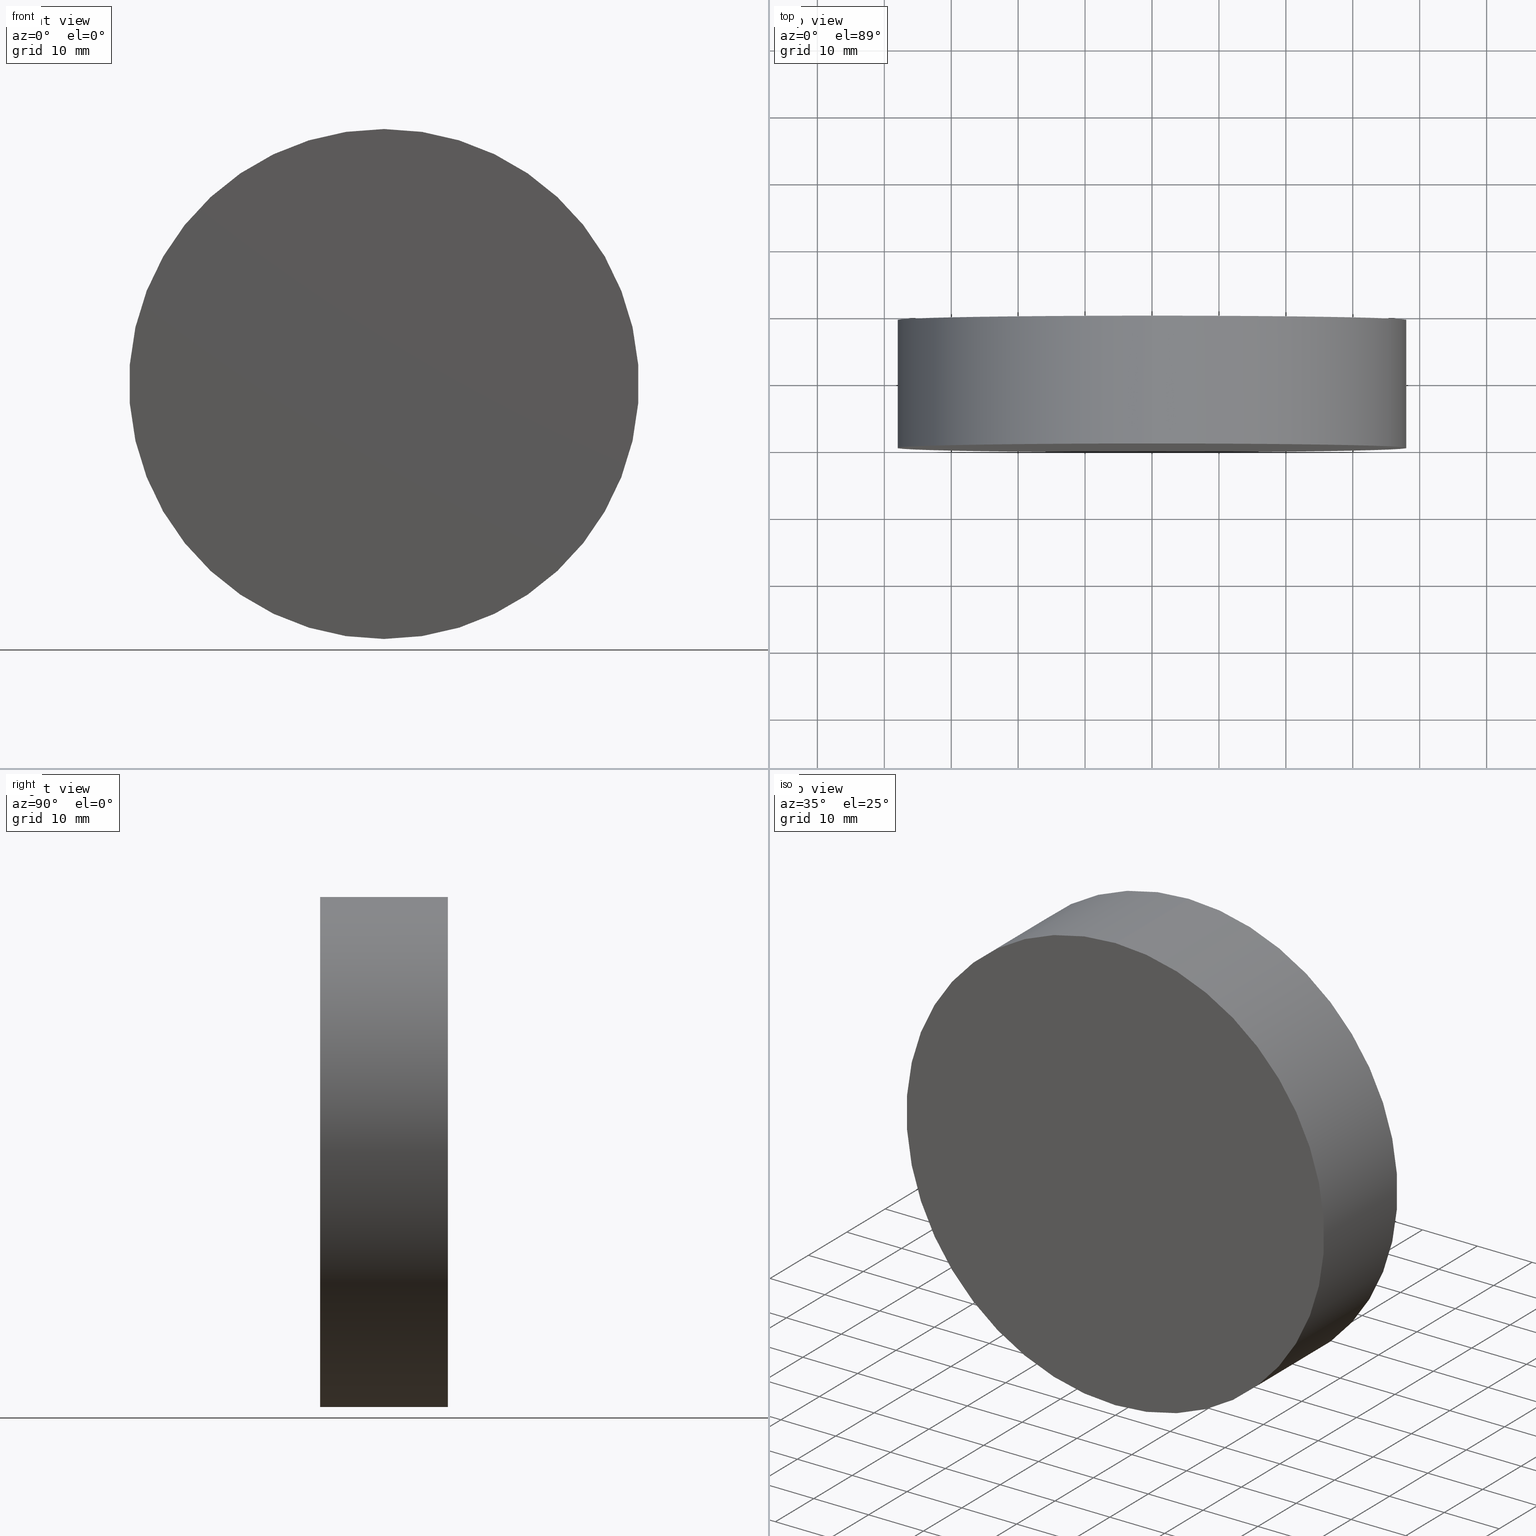
[diagram: canonical four-view strip — front | top / right | iso, engineering-drawing reading convention]
A machine part, canonical four-view strip (front | top / right | iso — engineering-drawing reading convention). The complete STEP part file that produces these views, byte-faithful:
ISO-10303-21;
HEADER;
FILE_DESCRIPTION (( 'STEP AP214' ),
    '1' );
FILE_NAME ('192502.STEP',
    '2019-07-19T05:07:47',
    ( 'user' ),
    ( '΢���й�' ),
    'SwSTEP 2.0',
    'SolidWorks 2016',
    '' );
FILE_SCHEMA (( 'AUTOMOTIVE_DESIGN' ));
ENDSEC;

DATA;
#1 = ORIENTED_EDGE ( 'NONE', *, *, #111, .F. ) ;
#2 = PRODUCT_DEFINITION ( 'δ֪', '', #10, #37 ) ;
#3 = PRESENTATION_STYLE_ASSIGNMENT (( #42 ) ) ;
#4 = APPLICATION_CONTEXT ( 'automotive_design' ) ;
#5 = DIRECTION ( 'NONE',  ( -0.0000000000000000000, -1.000000000000000000, -0.0000000000000000000 ) ) ;
#6 = DIRECTION ( 'NONE',  ( 0.0000000000000000000, 1.000000000000000000, 0.0000000000000000000 ) ) ;
#7 = DIRECTION ( 'NONE',  ( 0.0000000000000000000, 0.0000000000000000000, 1.000000000000000000 ) ) ;
#8 = FILL_AREA_STYLE ('',( #100 ) ) ;
#9 = ORIENTED_EDGE ( 'NONE', *, *, #81, .F. ) ;
#10 = PRODUCT_DEFINITION_FORMATION_WITH_SPECIFIED_SOURCE ( '�κ�', '', #45, .NOT_KNOWN. ) ;
#11 = EDGE_LOOP ( 'NONE', ( #1, #64 ) ) ;
#12 = VERTEX_POINT ( 'NONE', #31 ) ;
#13 = CIRCLE ( 'NONE', #140, 38.10000000000000100 ) ;
#14 = PRODUCT_RELATED_PRODUCT_CATEGORY ( 'part', '', ( #45 ) ) ;
#15 = CARTESIAN_POINT ( 'NONE',  ( 0.0000000000000000000, 0.0000000000000000000, 0.0000000000000000000 ) ) ;
#16 = AXIS2_PLACEMENT_3D ( 'NONE', #62, #51, #63 ) ;
#17 = SURFACE_STYLE_USAGE ( .BOTH. , #18 ) ;
#18 = SURFACE_SIDE_STYLE ('',( #50 ) ) ;
#19 =( NAMED_UNIT ( * ) PLANE_ANGLE_UNIT ( ) SI_UNIT ( $, .RADIAN. ) );
#20 =( NAMED_UNIT ( * ) SI_UNIT ( $, .STERADIAN. ) SOLID_ANGLE_UNIT ( ) );
#21 =( NAMED_UNIT ( * ) SI_UNIT ( $, .STERADIAN. ) SOLID_ANGLE_UNIT ( ) );
#22 = DIRECTION ( 'NONE',  ( 1.000000000000000000, 0.0000000000000000000, 0.0000000000000000000 ) ) ;
#23 = STYLED_ITEM ( 'NONE', ( #112 ), #122 ) ;
#24 = ORIENTED_EDGE ( 'NONE', *, *, #34, .T. ) ;
#25 = EDGE_CURVE ( 'NONE', #138, #96, #35, .T. ) ;
#26 = DIRECTION ( 'NONE',  ( 0.0000000000000000000, -0.0000000000000000000, 1.000000000000000000 ) ) ;
#27 = ORIENTED_EDGE ( 'NONE', *, *, #81, .T. ) ;
#28 = APPLICATION_CONTEXT ( 'automotive_design' ) ;
#29 = VECTOR ( 'NONE', #126, 1000.000000000000000 ) ;
#30 = CARTESIAN_POINT ( 'NONE',  ( 0.0000000000000000000, 0.0000000000000000000, 0.0000000000000000000 ) ) ;
#31 = CARTESIAN_POINT ( 'NONE',  ( 0.0000000000000000000, 0.0000000000000000000, -38.10000000000000100 ) ) ;
#32 = PRESENTATION_LAYER_ASSIGNMENT (  '', '', ( #23 ) ) ;
#33 = SURFACE_STYLE_FILL_AREA ( #127 ) ;
#34 = EDGE_CURVE ( 'NONE', #96, #12, #46, .T. ) ;
#35 = LINE ( 'NONE', #59, #99 ) ;
#36 = ADVANCED_FACE ( 'NONE', ( #72 ), #137, .F. ) ;
#37 = PRODUCT_DEFINITION_CONTEXT ( 'detailed design', #4, 'design' ) ;
#38 = CARTESIAN_POINT ( 'NONE',  ( 0.0000000000000000000, 19.10000000000000100, 0.0000000000000000000 ) ) ;
#39 = MECHANICAL_DESIGN_GEOMETRIC_PRESENTATION_REPRESENTATION (  '', ( #23 ), #47 ) ;
#40 =( LENGTH_UNIT ( ) NAMED_UNIT ( * ) SI_UNIT ( .MILLI., .METRE. ) );
#41 = AXIS2_PLACEMENT_3D ( 'NONE', #120, #44, #136 ) ;
#42 = SURFACE_STYLE_USAGE ( .BOTH. , #128 ) ;
#43 = CARTESIAN_POINT ( 'NONE',  ( 0.0000000000000000000, 19.10000000000000100, -38.10000000000000100 ) ) ;
#44 = DIRECTION ( 'NONE',  ( -0.0000000000000000000, -1.000000000000000000, -0.0000000000000000000 ) ) ;
#45 = PRODUCT ( '192502', '192502', '', ( #83 ) ) ;
#46 = CIRCLE ( 'NONE', #49, 38.10000000000000100 ) ;
#47 =( GEOMETRIC_REPRESENTATION_CONTEXT ( 3 ) GLOBAL_UNCERTAINTY_ASSIGNED_CONTEXT ( ( #97 ) ) GLOBAL_UNIT_ASSIGNED_CONTEXT ( ( #139, #108, #20 ) ) REPRESENTATION_CONTEXT ( 'NONE', 'WORKASPACE' ) );
#48 = EDGE_LOOP ( 'NONE', ( #70, #131, #24, #87 ) ) ;
#49 = AXIS2_PLACEMENT_3D ( 'NONE', #30, #76, #110 ) ;
#50 = SURFACE_STYLE_FILL_AREA ( #8 ) ;
#51 = DIRECTION ( 'NONE',  ( -0.0000000000000000000, -1.000000000000000000, -0.0000000000000000000 ) ) ;
#52 = CARTESIAN_POINT ( 'NONE',  ( 4.665904304751416100E-015, 0.0000000000000000000, 38.10000000000000100 ) ) ;
#53 = DIRECTION ( 'NONE',  ( 0.0000000000000000000, 1.000000000000000000, 0.0000000000000000000 ) ) ;
#54 = ORIENTED_EDGE ( 'NONE', *, *, #111, .T. ) ;
#55 = AXIS2_PLACEMENT_3D ( 'NONE', #78, #101, #91 ) ;
#56 = EDGE_LOOP ( 'NONE', ( #114, #9, #109, #54 ) ) ;
#57 = LINE ( 'NONE', #79, #29 ) ;
#58 =( LENGTH_UNIT ( ) NAMED_UNIT ( * ) SI_UNIT ( .MILLI., .METRE. ) );
#59 = CARTESIAN_POINT ( 'NONE',  ( 4.665904304751416100E-015, 19.10000000000000100, 38.10000000000000100 ) ) ;
#60 =( GEOMETRIC_REPRESENTATION_CONTEXT ( 3 ) GLOBAL_UNCERTAINTY_ASSIGNED_CONTEXT ( ( #67 ) ) GLOBAL_UNIT_ASSIGNED_CONTEXT ( ( #58, #135, #75 ) ) REPRESENTATION_CONTEXT ( 'NONE', 'WORKASPACE' ) );
#61 = DIRECTION ( 'NONE',  ( 0.0000000000000000000, 0.0000000000000000000, 1.000000000000000000 ) ) ;
#62 = CARTESIAN_POINT ( 'NONE',  ( 0.0000000000000000000, 19.10000000000000100, 0.0000000000000000000 ) ) ;
#63 = DIRECTION ( 'NONE',  ( 0.0000000000000000000, 0.0000000000000000000, -1.000000000000000000 ) ) ;
#64 = ORIENTED_EDGE ( 'NONE', *, *, #34, .F. ) ;
#65 = PLANE ( 'NONE',  #68 ) ;
#66 = APPLICATION_PROTOCOL_DEFINITION ( 'draft international standard', 'automotive_design', 1998, #28 ) ;
#67 = UNCERTAINTY_MEASURE_WITH_UNIT (LENGTH_MEASURE( 1.000000000000000100E-005 ), #58, 'distance_accuracy_value', 'NONE');
#68 = AXIS2_PLACEMENT_3D ( 'NONE', #38, #98, #26 ) ;
#69 = APPLICATION_PROTOCOL_DEFINITION ( 'draft international standard', 'automotive_design', 1998, #4 ) ;
#70 = ORIENTED_EDGE ( 'NONE', *, *, #71, .F. ) ;
#71 = EDGE_CURVE ( 'NONE', #138, #115, #130, .T. ) ;
#72 = FACE_OUTER_BOUND ( 'NONE', #11, .T. ) ;
#73 = CARTESIAN_POINT ( 'NONE',  ( 0.0000000000000000000, 19.10000000000000100, 0.0000000000000000000 ) ) ;
#74 = DIRECTION ( 'NONE',  ( 0.0000000000000000000, 0.0000000000000000000, 1.000000000000000000 ) ) ;
#75 =( NAMED_UNIT ( * ) SI_UNIT ( $, .STERADIAN. ) SOLID_ANGLE_UNIT ( ) );
#76 = DIRECTION ( 'NONE',  ( 0.0000000000000000000, 1.000000000000000000, 0.0000000000000000000 ) ) ;
#77 = CLOSED_SHELL ( 'NONE', ( #84, #95, #134, #36 ) ) ;
#78 = CARTESIAN_POINT ( 'NONE',  ( 0.0000000000000000000, 0.0000000000000000000, 0.0000000000000000000 ) ) ;
#79 = CARTESIAN_POINT ( 'NONE',  ( 0.0000000000000000000, 19.10000000000000100, -38.10000000000000100 ) ) ;
#80 = CIRCLE ( 'NONE', #124, 38.10000000000000100 ) ;
#81 = EDGE_CURVE ( 'NONE', #115, #138, #13, .T. ) ;
#82 = CYLINDRICAL_SURFACE ( 'NONE', #16, 38.10000000000000100 ) ;
#83 = PRODUCT_CONTEXT ( 'NONE', #28, 'mechanical' ) ;
#84 = ADVANCED_FACE ( 'NONE', ( #125 ), #132, .T. ) ;
#85 = DIRECTION ( 'NONE',  ( 0.0000000000000000000, 0.0000000000000000000, 1.000000000000000000 ) ) ;
#86 = STYLED_ITEM ( 'NONE', ( #3 ), #133 ) ;
#87 = ORIENTED_EDGE ( 'NONE', *, *, #129, .F. ) ;
#88 = CARTESIAN_POINT ( 'NONE',  ( 0.0000000000000000000, 19.10000000000000100, 0.0000000000000000000 ) ) ;
#89 = CARTESIAN_POINT ( 'NONE',  ( 0.0000000000000000000, 0.0000000000000000000, 0.0000000000000000000 ) ) ;
#90 = AXIS2_PLACEMENT_3D ( 'NONE', #88, #53, #85 ) ;
#91 = DIRECTION ( 'NONE',  ( 0.0000000000000000000, -0.0000000000000000000, 1.000000000000000000 ) ) ;
#92 = PRODUCT_DEFINITION_SHAPE ( 'NONE', 'NONE',  #2 ) ;
#93 = EDGE_LOOP ( 'NONE', ( #27, #123 ) ) ;
#94 = PRESENTATION_LAYER_ASSIGNMENT (  '', '', ( #86 ) ) ;
#95 = ADVANCED_FACE ( 'NONE', ( #104 ), #82, .T. ) ;
#96 = VERTEX_POINT ( 'NONE', #52 ) ;
#97 = UNCERTAINTY_MEASURE_WITH_UNIT (LENGTH_MEASURE( 1.000000000000000100E-005 ), #139, 'distance_accuracy_value', 'NONE');
#98 = DIRECTION ( 'NONE',  ( 0.0000000000000000000, 1.000000000000000000, 0.0000000000000000000 ) ) ;
#99 = VECTOR ( 'NONE', #5, 1000.000000000000000 ) ;
#100 = FILL_AREA_STYLE_COLOUR ( '', #106 ) ;
#101 = DIRECTION ( 'NONE',  ( 0.0000000000000000000, 1.000000000000000000, 0.0000000000000000000 ) ) ;
#102 = AXIS2_PLACEMENT_3D ( 'NONE', #89, #74, #22 ) ;
#103 = MECHANICAL_DESIGN_GEOMETRIC_PRESENTATION_REPRESENTATION (  '', ( #86 ), #107 ) ;
#104 = FACE_OUTER_BOUND ( 'NONE', #56, .T. ) ;
#105 = SHAPE_DEFINITION_REPRESENTATION ( #92, #133 ) ;
#106 = COLOUR_RGB ( '',1.000000000000000000, 1.000000000000000000, 1.000000000000000000 ) ;
#107 =( GEOMETRIC_REPRESENTATION_CONTEXT ( 3 ) GLOBAL_UNCERTAINTY_ASSIGNED_CONTEXT ( ( #113 ) ) GLOBAL_UNIT_ASSIGNED_CONTEXT ( ( #40, #19, #21 ) ) REPRESENTATION_CONTEXT ( 'NONE', 'WORKASPACE' ) );
#108 =( NAMED_UNIT ( * ) PLANE_ANGLE_UNIT ( ) SI_UNIT ( $, .RADIAN. ) );
#109 = ORIENTED_EDGE ( 'NONE', *, *, #129, .T. ) ;
#110 = DIRECTION ( 'NONE',  ( 0.0000000000000000000, 0.0000000000000000000, 1.000000000000000000 ) ) ;
#111 = EDGE_CURVE ( 'NONE', #12, #96, #80, .T. ) ;
#112 = PRESENTATION_STYLE_ASSIGNMENT (( #17 ) ) ;
#113 = UNCERTAINTY_MEASURE_WITH_UNIT (LENGTH_MEASURE( 1.000000000000000100E-005 ), #40, 'distance_accuracy_value', 'NONE');
#114 = ORIENTED_EDGE ( 'NONE', *, *, #25, .F. ) ;
#115 = VERTEX_POINT ( 'NONE', #43 ) ;
#116 = FACE_OUTER_BOUND ( 'NONE', #93, .T. ) ;
#117 = DIRECTION ( 'NONE',  ( 0.0000000000000000000, 1.000000000000000000, 0.0000000000000000000 ) ) ;
#118 = FILL_AREA_STYLE_COLOUR ( '', #121 ) ;
#119 = CARTESIAN_POINT ( 'NONE',  ( 4.665904304751416100E-015, 19.10000000000000100, 38.10000000000000100 ) ) ;
#120 = CARTESIAN_POINT ( 'NONE',  ( 0.0000000000000000000, 19.10000000000000100, 0.0000000000000000000 ) ) ;
#121 = COLOUR_RGB ( '',1.000000000000000000, 1.000000000000000000, 1.000000000000000000 ) ;
#122 = MANIFOLD_SOLID_BREP ( '͹̨-����1', #77 ) ;
#123 = ORIENTED_EDGE ( 'NONE', *, *, #71, .T. ) ;
#124 = AXIS2_PLACEMENT_3D ( 'NONE', #15, #6, #7 ) ;
#125 = FACE_OUTER_BOUND ( 'NONE', #48, .T. ) ;
#126 = DIRECTION ( 'NONE',  ( -0.0000000000000000000, -1.000000000000000000, -0.0000000000000000000 ) ) ;
#127 = FILL_AREA_STYLE ('',( #118 ) ) ;
#128 = SURFACE_SIDE_STYLE ('',( #33 ) ) ;
#129 = EDGE_CURVE ( 'NONE', #115, #12, #57, .T. ) ;
#130 = CIRCLE ( 'NONE', #90, 38.10000000000000100 ) ;
#131 = ORIENTED_EDGE ( 'NONE', *, *, #25, .T. ) ;
#132 = CYLINDRICAL_SURFACE ( 'NONE', #41, 38.10000000000000100 ) ;
#133 = ADVANCED_BREP_SHAPE_REPRESENTATION ( '192502', ( #122, #102 ), #60 ) ;
#134 = ADVANCED_FACE ( 'NONE', ( #116 ), #65, .T. ) ;
#135 =( NAMED_UNIT ( * ) PLANE_ANGLE_UNIT ( ) SI_UNIT ( $, .RADIAN. ) );
#136 = DIRECTION ( 'NONE',  ( 0.0000000000000000000, 0.0000000000000000000, -1.000000000000000000 ) ) ;
#137 = PLANE ( 'NONE',  #55 ) ;
#138 = VERTEX_POINT ( 'NONE', #119 ) ;
#139 =( LENGTH_UNIT ( ) NAMED_UNIT ( * ) SI_UNIT ( .MILLI., .METRE. ) );
#140 = AXIS2_PLACEMENT_3D ( 'NONE', #73, #117, #61 ) ;
ENDSEC;
END-ISO-10303-21;
